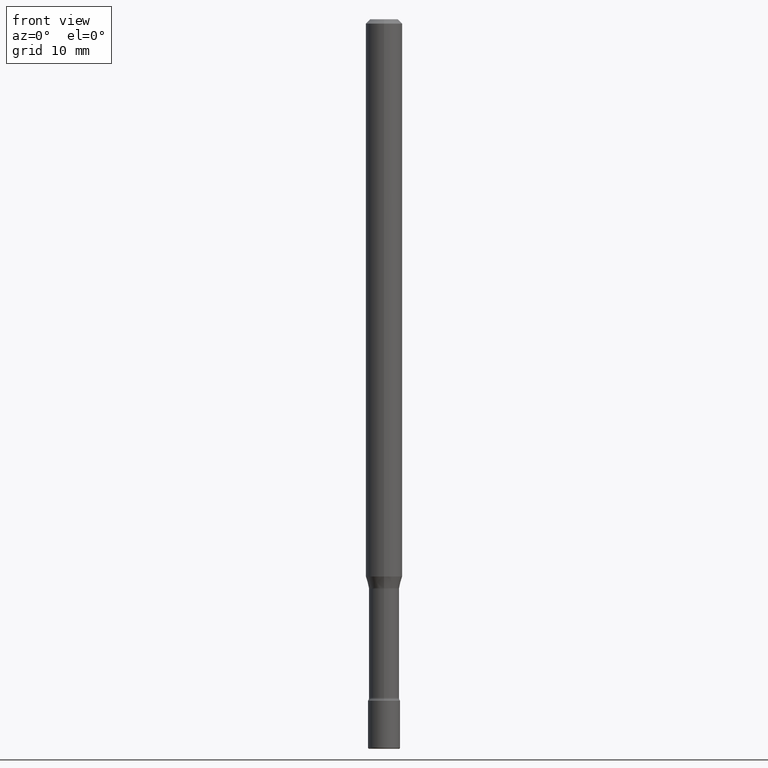
[diagram: clean part render]
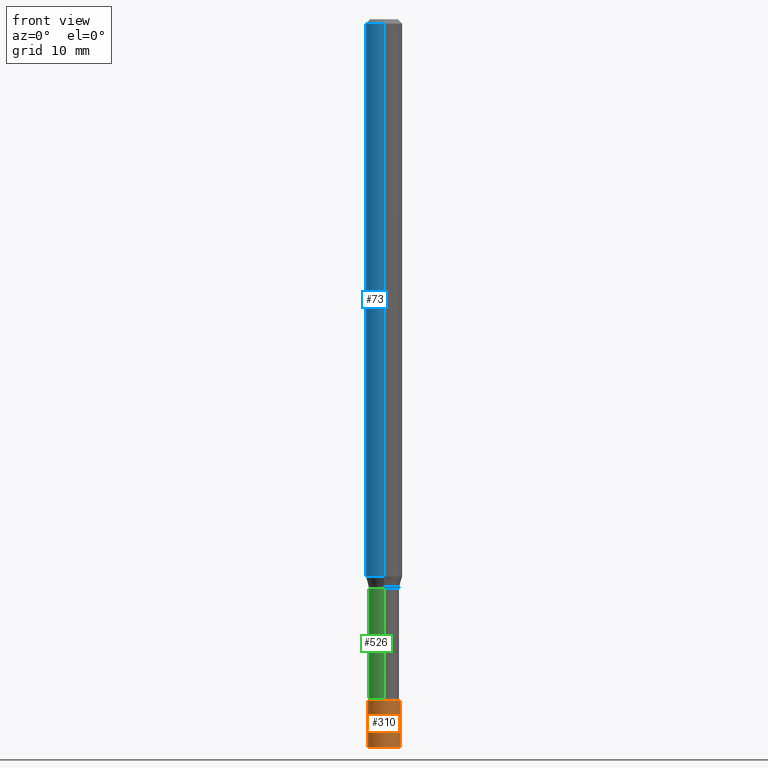
[diagram: same view with three faces highlighted in distinct colors, each labeled with its STEP entity id]
A machine part, front view with three faces highlighted in distinct colors.
Their STEP definitions:

[orange] entity #310 — the highlighted cylindrical surface (edge-blend (fillet) strip) has radius 1.397 mm, axis along (-0, 0, 1).
#9 = AXIS2_PLACEMENT_3D ( 'NONE', #540, #230, #54 ) ;
#27 = ORIENTED_EDGE ( 'NONE', *, *, #86, .F. ) ;
#42 = ORIENTED_EDGE ( 'NONE', *, *, #258, .F. ) ;
#50 = EDGE_CURVE ( 'NONE', #407, #481, #217, .T. ) ;
#54 = DIRECTION ( 'NONE',  ( 1.000000000000000000, -6.982962677686262766E-15, 0.000000000000000000 ) ) ;
#58 = LINE ( 'NONE', #511, #235 ) ;
#86 = EDGE_CURVE ( 'NONE', #407, #329, #58, .T. ) ;
#105 = CARTESIAN_POINT ( 'NONE',  ( 0.05500000000000000028, -3.840629472727446888E-16, 2.681897226687764826E-30 ) ) ;
#110 = DIRECTION ( 'NONE',  ( -2.445468806185136877E-29, 3.491481338843145188E-15, 1.000000000000000000 ) ) ;
#116 = DIRECTION ( 'NONE',  ( 1.000000000000000000, -6.982962677686279332E-15, 0.000000000000000000 ) ) ;
#141 = ORIENTED_EDGE ( 'NONE', *, *, #247, .T. ) ;
#152 = DIRECTION ( 'NONE',  ( -2.445468806185136597E-29, 3.491481338843145583E-15, 1.000000000000000000 ) ) ;
#162 = CYLINDRICAL_SURFACE ( 'NONE', #504, 0.05500000000000000028 ) ;
#213 = ORIENTED_EDGE ( 'NONE', *, *, #50, .T. ) ;
#217 = CIRCLE ( 'NONE', #422, 0.05500000000000000028 ) ;
#225 = DIRECTION ( 'NONE',  ( -2.445468806185136877E-29, 3.491481338843145188E-15, 1.000000000000000000 ) ) ;
#230 = DIRECTION ( 'NONE',  ( -2.445468806185136597E-29, 3.491481338843145583E-15, 1.000000000000000000 ) ) ;
#235 = VECTOR ( 'NONE', #110, 39.37007874015748143 ) ;
#247 = EDGE_CURVE ( 'NONE', #481, #559, #274, .T. ) ;
#258 = EDGE_CURVE ( 'NONE', #329, #559, #458, .T. ) ;
#274 = LINE ( 'NONE', #105, #555 ) ;
#279 = CARTESIAN_POINT ( 'NONE',  ( 0.000000000000000000, 0.000000000000000000, 0.000000000000000000 ) ) ;
#290 = CARTESIAN_POINT ( 'NONE',  ( 0.05500000000000000028, -8.536671873471490084E-15, -2.334999999999999964 ) ) ;
#310 = ADVANCED_FACE ( 'NONE', ( #331 ), #162, .T. ) ;
#329 = VERTEX_POINT ( 'NONE', #337 ) ;
#331 = FACE_OUTER_BOUND ( 'NONE', #446, .T. ) ;
#337 = CARTESIAN_POINT ( 'NONE',  ( -0.05500000000000000028, -8.041128928638142054E-15, -2.334999999999999964 ) ) ;
#381 = DIRECTION ( 'NONE',  ( 1.000000000000000000, -6.982962677686266711E-15, 4.876176775795935793E-29 ) ) ;
#386 = CARTESIAN_POINT ( 'NONE',  ( -0.05499999999999988926, -8.320447435745593669E-15, -2.495000000000000107 ) ) ;
#407 = VERTEX_POINT ( 'NONE', #386 ) ;
#422 = AXIS2_PLACEMENT_3D ( 'NONE', #508, #518, #116 ) ;
#446 = EDGE_LOOP ( 'NONE', ( #27, #213, #141, #42 ) ) ;
#458 = CIRCLE ( 'NONE', #9, 0.05500000000000000028 ) ;
#481 = VERTEX_POINT ( 'NONE', #528 ) ;
#504 = AXIS2_PLACEMENT_3D ( 'NONE', #279, #152, #381 ) ;
#508 = CARTESIAN_POINT ( 'NONE',  ( 6.101444671431915719E-29, -8.711245940413648329E-15, -2.495000000000000107 ) ) ;
#511 = CARTESIAN_POINT ( 'NONE',  ( -0.05500000000000000028, 3.907985046680551042E-16, -2.705414299640198362E-30 ) ) ;
#518 = DIRECTION ( 'NONE',  ( -2.445468806185136597E-29, 3.491481338843145583E-15, 1.000000000000000000 ) ) ;
#528 = CARTESIAN_POINT ( 'NONE',  ( 0.05499999999999988926, -9.095308887686390158E-15, -2.495000000000000107 ) ) ;
#540 = CARTESIAN_POINT ( 'NONE',  ( 5.710169662442294357E-29, -8.152608926198745099E-15, -2.334999999999999964 ) ) ;
#555 = VECTOR ( 'NONE', #225, 39.37007874015748143 ) ;
#559 = VERTEX_POINT ( 'NONE', #290 ) ;

[blue] entity #73 — the highlighted cylindrical surface (edge-blend (fillet) strip) has radius 1.5875 mm, axis along (-0, 0, 1).
#20 = DIRECTION ( 'NONE',  ( -6.982962677686265922E-15, -1.000000000000000000, 3.491600943140732160E-15 ) ) ;
#26 = LINE ( 'NONE', #71, #28 ) ;
#28 = VECTOR ( 'NONE', #236, 39.37007874015748143 ) ;
#35 = AXIS2_PLACEMENT_3D ( 'NONE', #462, #108, #20 ) ;
#38 = EDGE_LOOP ( 'NONE', ( #544, #567, #450, #441 ) ) ;
#65 = DIRECTION ( 'NONE',  ( -2.445385286950522456E-29, 3.491600943140732554E-15, 1.000000000000000000 ) ) ;
#71 = CARTESIAN_POINT ( 'NONE',  ( 4.440892098500625669E-16, 0.06250000000000000000, 2.598483399449503033E-16 ) ) ;
#73 = ADVANCED_FACE ( 'NONE', ( #516 ), #275, .T. ) ;
#74 = DIRECTION ( 'NONE',  ( -6.982962677686265922E-15, -1.000000000000000000, 4.370956789862821150E-15 ) ) ;
#107 = CARTESIAN_POINT ( 'NONE',  ( 4.440892098501093562E-16, 0.06249999999999334560, -1.909693851278256416 ) ) ;
#108 = DIRECTION ( 'NONE',  ( -2.445385286950522456E-29, 3.491600943140732554E-15, 1.000000000000000000 ) ) ;
#123 = DIRECTION ( 'NONE',  ( -6.982962677686265922E-15, -1.000000000000000000, 3.483106191921935554E-15 ) ) ;
#164 = VERTEX_POINT ( 'NONE', #276 ) ;
#173 = CIRCLE ( 'NONE', #572, 0.06250000000000000000 ) ;
#199 = VERTEX_POINT ( 'NONE', #107 ) ;
#203 = DIRECTION ( 'NONE',  ( -2.445385286950522456E-29, 3.491600943140732554E-15, 1.000000000000000000 ) ) ;
#218 = AXIS2_PLACEMENT_3D ( 'NONE', #296, #203, #74 ) ;
#220 = CARTESIAN_POINT ( 'NONE',  ( 3.668077930425790463E-31, -5.237401414711108766E-17, -0.01500000000000002720 ) ) ;
#236 = DIRECTION ( 'NONE',  ( -2.445385286950522456E-29, 3.491600943140732554E-15, 1.000000000000000000 ) ) ;
#245 = CARTESIAN_POINT ( 'NONE',  ( 4.440892098501096520E-16, 0.06249999999999995837, -0.01500000000000024578 ) ) ;
#262 = VERTEX_POINT ( 'NONE', #461 ) ;
#275 = CYLINDRICAL_SURFACE ( 'NONE', #35, 0.06250000000000000000 ) ;
#276 = CARTESIAN_POINT ( 'NONE',  ( -4.364351673553447815E-16, -0.06250000000000664746, -1.909693851278255972 ) ) ;
#296 = CARTESIAN_POINT ( 'NONE',  ( 4.669937246495726866E-29, -6.667888852233216880E-15, -1.909693851278256194 ) ) ;
#369 = CIRCLE ( 'NONE', #218, 0.06250000000000000000 ) ;
#380 = EDGE_CURVE ( 'NONE', #164, #262, #470, .T. ) ;
#410 = EDGE_CURVE ( 'NONE', #199, #537, #26, .T. ) ;
#423 = EDGE_CURVE ( 'NONE', #199, #164, #369, .T. ) ;
#441 = ORIENTED_EDGE ( 'NONE', *, *, #483, .F. ) ;
#449 = DIRECTION ( 'NONE',  ( -2.445385286950522456E-29, 3.491600943140732554E-15, 1.000000000000000000 ) ) ;
#450 = ORIENTED_EDGE ( 'NONE', *, *, #380, .T. ) ;
#459 = VECTOR ( 'NONE', #65, 39.37007874015748143 ) ;
#461 = CARTESIAN_POINT ( 'NONE',  ( -4.364351673553912750E-16, -0.06250000000000005551, -0.01499999999999981036 ) ) ;
#462 = CARTESIAN_POINT ( 'NONE',  ( -1.169113584055446105E-44, 1.669184350826100908E-30, 4.780733988912460139E-16 ) ) ;
#468 = CARTESIAN_POINT ( 'NONE',  ( -4.364351673553916201E-16, -0.06250000000000000000, 6.962984578375418232E-16 ) ) ;
#470 = LINE ( 'NONE', #468, #459 ) ;
#483 = EDGE_CURVE ( 'NONE', #537, #262, #173, .T. ) ;
#516 = FACE_OUTER_BOUND ( 'NONE', #38, .T. ) ;
#537 = VERTEX_POINT ( 'NONE', #245 ) ;
#544 = ORIENTED_EDGE ( 'NONE', *, *, #410, .F. ) ;
#567 = ORIENTED_EDGE ( 'NONE', *, *, #423, .T. ) ;
#572 = AXIS2_PLACEMENT_3D ( 'NONE', #220, #449, #123 ) ;

[green] entity #526 — the highlighted cylindrical surface (edge-blend (fillet) strip) has radius 1.3132 mm, axis along (-0, 0, 1).
#3 = LINE ( 'NONE', #170, #68 ) ;
#39 = DIRECTION ( 'NONE',  ( -6.982962677686266711E-15, -1.000000000000000000, 5.284038672464726492E-15 ) ) ;
#43 = EDGE_CURVE ( 'NONE', #345, #301, #394, .T. ) ;
#46 = AXIS2_PLACEMENT_3D ( 'NONE', #390, #191, #326 ) ;
#63 = DIRECTION ( 'NONE',  ( -2.445385286950522456E-29, 3.491600943140732554E-15, 1.000000000000000000 ) ) ;
#68 = VECTOR ( 'NONE', #352, 39.37007874015748143 ) ;
#90 = AXIS2_PLACEMENT_3D ( 'NONE', #149, #63, #160 ) ;
#128 = EDGE_LOOP ( 'NONE', ( #172, #183, #297, #495 ) ) ;
#130 = VERTEX_POINT ( 'NONE', #181 ) ;
#143 = CIRCLE ( 'NONE', #472, 0.05169999999999998902 ) ;
#147 = FACE_OUTER_BOUND ( 'NONE', #128, .T. ) ;
#149 = CARTESIAN_POINT ( 'NONE',  ( 4.773330425762376374E-29, -6.815517008895574721E-15, -1.951974787463810923 ) ) ;
#160 = DIRECTION ( 'NONE',  ( -6.982962677686266711E-15, -1.000000000000000000, 5.284038672464726492E-15 ) ) ;
#170 = CARTESIAN_POINT ( 'NONE',  ( 3.673505943879716688E-16, 0.05169999999999998902, 2.975576301308702297E-16 ) ) ;
#172 = ORIENTED_EDGE ( 'NONE', *, *, #491, .F. ) ;
#181 = CARTESIAN_POINT ( 'NONE',  ( -3.610191704363230083E-16, -0.05170000000000810753, -2.325613307291702458 ) ) ;
#183 = ORIENTED_EDGE ( 'NONE', *, *, #496, .T. ) ;
#191 = DIRECTION ( 'NONE',  ( -2.445385286950522456E-29, 3.491600943140732554E-15, 1.000000000000000000 ) ) ;
#223 = VERTEX_POINT ( 'NONE', #412 ) ;
#249 = CARTESIAN_POINT ( 'NONE',  ( -3.610191704363322281E-16, -0.05170000000000680995, -1.951974787463810701 ) ) ;
#254 = VECTOR ( 'NONE', #281, 39.37007874015748143 ) ;
#281 = DIRECTION ( 'NONE',  ( -2.445385286950522456E-29, 3.491600943140732554E-15, 1.000000000000000000 ) ) ;
#297 = ORIENTED_EDGE ( 'NONE', *, *, #546, .T. ) ;
#301 = VERTEX_POINT ( 'NONE', #249 ) ;
#321 = CARTESIAN_POINT ( 'NONE',  ( -3.610191704363799049E-16, -0.05169999999999998902, 6.585891676516218968E-16 ) ) ;
#326 = DIRECTION ( 'NONE',  ( -6.982962677686266711E-15, -1.000000000000000000, 3.491600943140732948E-15 ) ) ;
#330 = CYLINDRICAL_SURFACE ( 'NONE', #46, 0.05169999999999998902 ) ;
#345 = VERTEX_POINT ( 'NONE', #509 ) ;
#346 = CARTESIAN_POINT ( 'NONE',  ( 5.687020564787474071E-29, -8.120113617120347933E-15, -2.325613307291702903 ) ) ;
#352 = DIRECTION ( 'NONE',  ( -2.445385286950522456E-29, 3.491600943140732554E-15, 1.000000000000000000 ) ) ;
#390 = CARTESIAN_POINT ( 'NONE',  ( -1.169113584055446105E-44, 1.669184350826100908E-30, 4.780733988912460139E-16 ) ) ;
#394 = CIRCLE ( 'NONE', #90, 0.05169999999999999596 ) ;
#408 = DIRECTION ( 'NONE',  ( -2.445385286950522456E-29, 3.491600943140732554E-15, 1.000000000000000000 ) ) ;
#412 = CARTESIAN_POINT ( 'NONE',  ( 3.790745495280705543E-16, 0.05169999999999187051, -2.325613307291702903 ) ) ;
#472 = AXIS2_PLACEMENT_3D ( 'NONE', #346, #408, #39 ) ;
#491 = EDGE_CURVE ( 'NONE', #223, #345, #3, .T. ) ;
#495 = ORIENTED_EDGE ( 'NONE', *, *, #43, .F. ) ;
#496 = EDGE_CURVE ( 'NONE', #223, #130, #143, .T. ) ;
#509 = CARTESIAN_POINT ( 'NONE',  ( 3.673505943880287133E-16, 0.05169999999999318890, -1.951974787463811367 ) ) ;
#526 = ADVANCED_FACE ( 'NONE', ( #147 ), #330, .T. ) ;
#546 = EDGE_CURVE ( 'NONE', #130, #301, #560, .T. ) ;
#560 = LINE ( 'NONE', #321, #254 ) ;